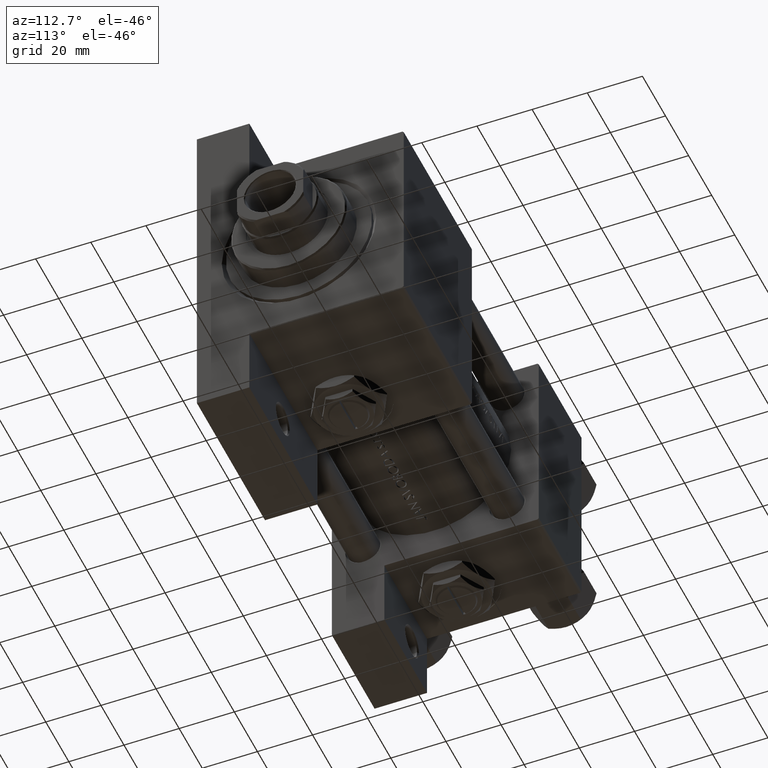
[diagram: clean part render]
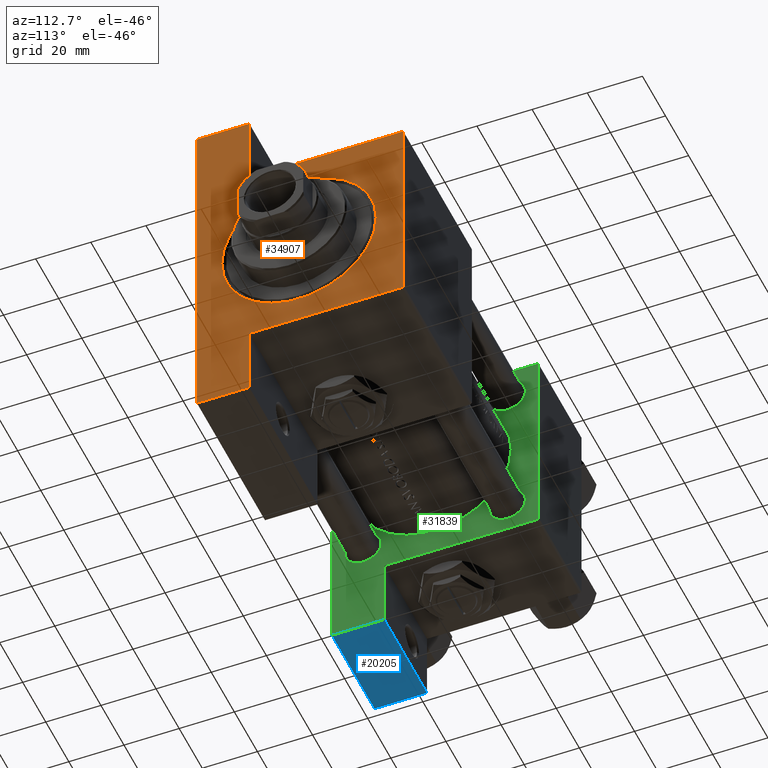
[diagram: same view with three faces highlighted in distinct colors, each labeled with its STEP entity id]
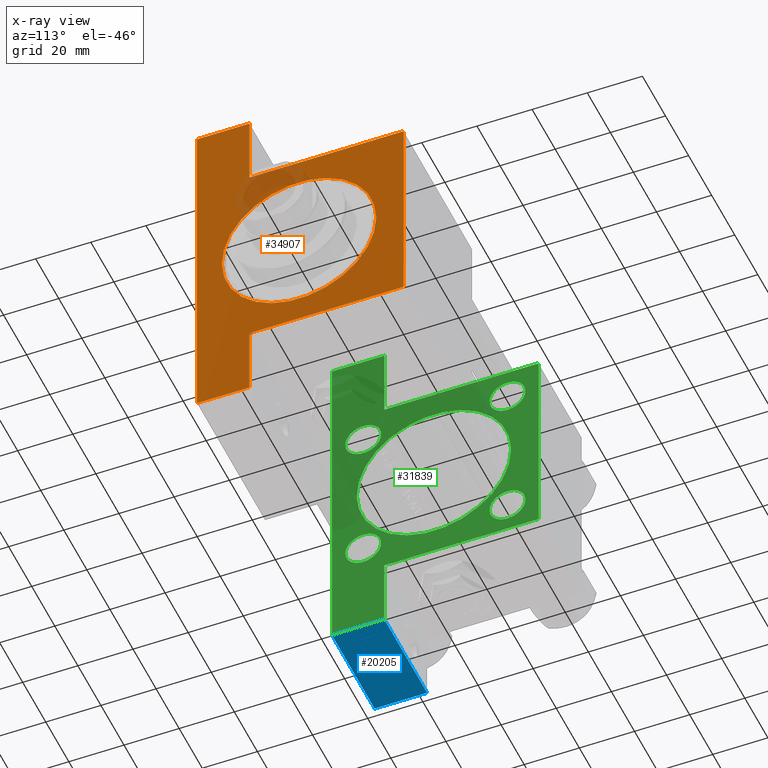
[diagram: x-ray of the same camera — body ghosted, the three highlighted faces saturated]
A machine part, auxiliary view with three faces highlighted in distinct colors.
The next image is the same camera in x-ray (body ghosted, the three faces saturated) — at least one of them is partly hidden behind the body in this view.
Their STEP definitions:

[orange] entity #34907 — the highlighted planar face has unit normal (-1, 0, 0).
#230 = ORIENTED_EDGE ( 'NONE', *, *, #29464, .F. ) ;
#1184 = DIRECTION ( 'NONE',  ( -1.067522139062650671E-15, -1.000000000000000000, 0.000000000000000000 ) ) ;
#1255 = EDGE_LOOP ( 'NONE', ( #44757, #30126 ) ) ;
#1565 = CARTESIAN_POINT ( 'NONE',  ( 154.0000000000000000, -37.50000000000000711, -18.50000000000000355 ) ) ;
#2677 = LINE ( 'NONE', #6186, #32424 ) ;
#3826 = DIRECTION ( 'NONE',  ( 0.000000000000000000, -9.251858538542972814E-17, -1.000000000000000000 ) ) ;
#3835 = DIRECTION ( 'NONE',  ( -1.000000000000000000, -0.000000000000000000, 0.000000000000000000 ) ) ;
#4231 = ORIENTED_EDGE ( 'NONE', *, *, #29100, .T. ) ;
#4535 = VERTEX_POINT ( 'NONE', #1565 ) ;
#5499 = VERTEX_POINT ( 'NONE', #19713 ) ;
#6186 = CARTESIAN_POINT ( 'NONE',  ( 154.0000000000000000, 37.50000000000000000, 37.49999999999999289 ) ) ;
#8521 = CARTESIAN_POINT ( 'NONE',  ( 154.0000000000000000, 37.50000000000000000, 36.99999999999999289 ) ) ;
#9108 = CARTESIAN_POINT ( 'NONE',  ( 154.0000000000000000, 0.000000000000000000, -0.5000000000000004441 ) ) ;
#9416 = VECTOR ( 'NONE', #23317, 1000.000000000000000 ) ;
#9875 = ORIENTED_EDGE ( 'NONE', *, *, #41698, .F. ) ;
#9942 = VERTEX_POINT ( 'NONE', #8521 ) ;
#10072 = LINE ( 'NONE', #10314, #27412 ) ;
#10314 = CARTESIAN_POINT ( 'NONE',  ( 154.0000000000000000, 37.00000000000000000, 37.49999999999999289 ) ) ;
#10377 = CARTESIAN_POINT ( 'NONE',  ( 154.0000000000000000, 37.50000000000000000, 37.49999999999999289 ) ) ;
#11161 = FACE_BOUND ( 'NONE', #1255, .T. ) ;
#11900 = EDGE_CURVE ( 'NONE', #32151, #43029, #2677, .T. ) ;
#12760 = LINE ( 'NONE', #39095, #37432 ) ;
#13724 = VERTEX_POINT ( 'NONE', #32346 ) ;
#14503 = VECTOR ( 'NONE', #3826, 1000.000000000000000 ) ;
#15000 = CARTESIAN_POINT ( 'NONE',  ( 153.9999999999999716, -63.50000000000002842, -18.50000000000000000 ) ) ;
#15961 = CARTESIAN_POINT ( 'NONE',  ( 153.9999999999999716, -63.50000000000002842, -18.50000000000000000 ) ) ;
#16238 = CARTESIAN_POINT ( 'NONE',  ( 154.0000000000000000, 0.000000000000000000, -28.49999999999999645 ) ) ;
#16407 = CARTESIAN_POINT ( 'NONE',  ( 154.0000000000000000, 63.50000000000000000, -18.50000000000000000 ) ) ;
#17108 = EDGE_CURVE ( 'NONE', #43029, #46724, #27147, .T. ) ;
#17344 = VERTEX_POINT ( 'NONE', #16238 ) ;
#18148 = LINE ( 'NONE', #10377, #27048 ) ;
#18216 = ORIENTED_EDGE ( 'NONE', *, *, #40200, .T. ) ;
#18672 = CARTESIAN_POINT ( 'NONE',  ( 154.0000000000000000, 0.000000000000000000, 0.000000000000000000 ) ) ;
#19362 = DIRECTION ( 'NONE',  ( 0.000000000000000000, 0.000000000000000000, 1.000000000000000000 ) ) ;
#19561 = CARTESIAN_POINT ( 'NONE',  ( 154.0000000000000000, 37.50000000000000000, -37.50000000000000000 ) ) ;
#19713 = CARTESIAN_POINT ( 'NONE',  ( 153.9999999999999716, 37.50000000000000711, -18.50000000000000000 ) ) ;
#19759 = CARTESIAN_POINT ( 'NONE',  ( 154.0000000000000000, 37.00000000000000000, 37.49999999999999289 ) ) ;
#19848 = CARTESIAN_POINT ( 'NONE',  ( 154.0000000000000000, -37.50000000000000000, 37.49999999999997868 ) ) ;
#20467 = LINE ( 'NONE', #35767, #27589 ) ;
#20575 = EDGE_CURVE ( 'NONE', #9942, #32151, #10072, .T. ) ;
#21064 = CARTESIAN_POINT ( 'NONE',  ( 154.0000000000000000, 3.429011037612588881E-15, 27.49999999999999645 ) ) ;
#21934 = DIRECTION ( 'NONE',  ( 0.000000000000000000, 0.000000000000000000, 1.000000000000000000 ) ) ;
#22203 = AXIS2_PLACEMENT_3D ( 'NONE', #38187, #3835, #19362 ) ;
#23317 = DIRECTION ( 'NONE',  ( 0.000000000000000000, -1.000000000000000000, 0.000000000000000000 ) ) ;
#23387 = EDGE_LOOP ( 'NONE', ( #38027, #33652, #27954, #37224, #45549, #18216, #41671, #9875, #230, #4231 ) ) ;
#25986 = DIRECTION ( 'NONE',  ( 0.000000000000000000, -1.000000000000000000, -1.850371707708594316E-16 ) ) ;
#26696 = PLANE ( 'NONE',  #35744 ) ;
#27048 = VECTOR ( 'NONE', #44489, 1000.000000000000000 ) ;
#27147 = LINE ( 'NONE', #39418, #48086 ) ;
#27412 = VECTOR ( 'NONE', #36891, 1000.000000000000114 ) ;
#27589 = VECTOR ( 'NONE', #1184, 1000.000000000000000 ) ;
#27954 = ORIENTED_EDGE ( 'NONE', *, *, #11900, .T. ) ;
#29100 = EDGE_CURVE ( 'NONE', #38762, #5499, #20467, .T. ) ;
#29464 = EDGE_CURVE ( 'NONE', #38762, #33446, #42754, .T. ) ;
#30126 = ORIENTED_EDGE ( 'NONE', *, *, #43898, .T. ) ;
#30288 = DIRECTION ( 'NONE',  ( -0.000000000000000000, -1.000000000000000000, -0.000000000000000000 ) ) ;
#30360 = LINE ( 'NONE', #19561, #9416 ) ;
#31211 = DIRECTION ( 'NONE',  ( 0.000000000000000000, 0.000000000000000000, -1.000000000000000000 ) ) ;
#31435 = DIRECTION ( 'NONE',  ( 0.000000000000000000, 0.000000000000000000, 1.000000000000000000 ) ) ;
#31689 = DIRECTION ( 'NONE',  ( -1.000000000000000000, -0.000000000000000000, 0.000000000000000000 ) ) ;
#31743 = CARTESIAN_POINT ( 'NONE',  ( 154.0000000000000000, 63.50000000000000000, -37.50000000000000000 ) ) ;
#32151 = VERTEX_POINT ( 'NONE', #19759 ) ;
#32346 = CARTESIAN_POINT ( 'NONE',  ( 153.9999999999999716, -63.50000000000002842, -37.50000000000000000 ) ) ;
#32424 = VECTOR ( 'NONE', #25986, 1000.000000000000000 ) ;
#32780 = CIRCLE ( 'NONE', #37592, 27.99999999999999645 ) ;
#33166 = VECTOR ( 'NONE', #31211, 1000.000000000000000 ) ;
#33298 = LINE ( 'NONE', #15000, #47013 ) ;
#33425 = CARTESIAN_POINT ( 'NONE',  ( 154.0000000000000000, -37.50000000000000000, 36.99999999999997868 ) ) ;
#33446 = VERTEX_POINT ( 'NONE', #31743 ) ;
#33478 = FACE_OUTER_BOUND ( 'NONE', #23387, .T. ) ;
#33652 = ORIENTED_EDGE ( 'NONE', *, *, #20575, .T. ) ;
#34907 = ADVANCED_FACE ( 'NONE', ( #11161, #33478 ), #26696, .F. ) ;
#34948 = CARTESIAN_POINT ( 'NONE',  ( 154.0000000000000000, -36.99999999999997158, 37.49999999999997868 ) ) ;
#35744 = AXIS2_PLACEMENT_3D ( 'NONE', #18672, #45020, #21934 ) ;
#35767 = CARTESIAN_POINT ( 'NONE',  ( 154.0000000000000000, 63.50000000000000000, -18.50000000000000000 ) ) ;
#36891 = DIRECTION ( 'NONE',  ( 0.000000000000000000, -0.7071067811865474617, 0.7071067811865474617 ) ) ;
#37224 = ORIENTED_EDGE ( 'NONE', *, *, #17108, .T. ) ;
#37432 = VECTOR ( 'NONE', #38853, 1000.000000000000000 ) ;
#37592 = AXIS2_PLACEMENT_3D ( 'NONE', #9108, #31689, #31435 ) ;
#38027 = ORIENTED_EDGE ( 'NONE', *, *, #42057, .F. ) ;
#38051 = EDGE_CURVE ( 'NONE', #45313, #13724, #12760, .T. ) ;
#38187 = CARTESIAN_POINT ( 'NONE',  ( 154.0000000000000000, 0.000000000000000000, -0.5000000000000004441 ) ) ;
#38663 = LINE ( 'NONE', #19848, #14503 ) ;
#38762 = VERTEX_POINT ( 'NONE', #16407 ) ;
#38853 = DIRECTION ( 'NONE',  ( 0.000000000000000000, 0.000000000000000000, -1.000000000000000000 ) ) ;
#39095 = CARTESIAN_POINT ( 'NONE',  ( 153.9999999999999716, -63.50000000000002842, -18.50000000000000000 ) ) ;
#39418 = CARTESIAN_POINT ( 'NONE',  ( 154.0000000000000000, -37.50000000000000000, 36.99999999999997868 ) ) ;
#40200 = EDGE_CURVE ( 'NONE', #4535, #45313, #33298, .T. ) ;
#40797 = EDGE_CURVE ( 'NONE', #17344, #45677, #43816, .T. ) ;
#41671 = ORIENTED_EDGE ( 'NONE', *, *, #38051, .T. ) ;
#41698 = EDGE_CURVE ( 'NONE', #33446, #13724, #30360, .T. ) ;
#42057 = EDGE_CURVE ( 'NONE', #9942, #5499, #18148, .T. ) ;
#42259 = CARTESIAN_POINT ( 'NONE',  ( 154.0000000000000000, 63.50000000000000000, -18.50000000000000000 ) ) ;
#42443 = DIRECTION ( 'NONE',  ( -0.000000000000000000, -0.7071067811865672237, -0.7071067811865279218 ) ) ;
#42754 = LINE ( 'NONE', #42259, #33166 ) ;
#43029 = VERTEX_POINT ( 'NONE', #34948 ) ;
#43816 = CIRCLE ( 'NONE', #22203, 27.99999999999999645 ) ;
#43898 = EDGE_CURVE ( 'NONE', #45677, #17344, #32780, .T. ) ;
#44489 = DIRECTION ( 'NONE',  ( 0.000000000000000000, 0.000000000000000000, -1.000000000000000000 ) ) ;
#44757 = ORIENTED_EDGE ( 'NONE', *, *, #40797, .T. ) ;
#45020 = DIRECTION ( 'NONE',  ( -1.000000000000000000, -0.000000000000000000, 0.000000000000000000 ) ) ;
#45313 = VERTEX_POINT ( 'NONE', #15961 ) ;
#45549 = ORIENTED_EDGE ( 'NONE', *, *, #47915, .T. ) ;
#45677 = VERTEX_POINT ( 'NONE', #21064 ) ;
#46724 = VERTEX_POINT ( 'NONE', #33425 ) ;
#47013 = VECTOR ( 'NONE', #30288, 1000.000000000000000 ) ;
#47915 = EDGE_CURVE ( 'NONE', #46724, #4535, #38663, .T. ) ;
#48086 = VECTOR ( 'NONE', #42443, 1000.000000000000000 ) ;

[blue] entity #20205 — the highlighted planar face has unit normal (0, -0, -1).
#1639 = CARTESIAN_POINT ( 'NONE',  ( 37.00000000000001421, 63.50000000000001421, 26.72167621838005047 ) ) ;
#3900 = LINE ( 'NONE', #15190, #12316 ) ;
#4329 = DIRECTION ( 'NONE',  ( 1.000000000000000000, 0.000000000000000000, 0.000000000000000000 ) ) ;
#4450 = VECTOR ( 'NONE', #4329, 1000.000000000000000 ) ;
#5060 = CARTESIAN_POINT ( 'NONE',  ( 37.00000000000001421, 63.50000000000000000, -37.50000000000002132 ) ) ;
#5134 = DIRECTION ( 'NONE',  ( 0.000000000000000000, 1.734723475976806848E-16, 1.000000000000000000 ) ) ;
#5611 = CARTESIAN_POINT ( 'NONE',  ( 1.595073532467135441E-14, 63.50000000000001421, 26.72167621838005047 ) ) ;
#5991 = ORIENTED_EDGE ( 'NONE', *, *, #27972, .T. ) ;
#6874 = EDGE_CURVE ( 'NONE', #32451, #37217, #22930, .T. ) ;
#7596 = VECTOR ( 'NONE', #42002, 1000.000000000000000 ) ;
#8256 = EDGE_CURVE ( 'NONE', #28697, #28503, #39171, .T. ) ;
#9376 = FACE_OUTER_BOUND ( 'NONE', #21720, .T. ) ;
#12316 = VECTOR ( 'NONE', #38494, 1000.000000000000000 ) ;
#15190 = CARTESIAN_POINT ( 'NONE',  ( 1.595073532467135441E-14, 63.50000000000001421, 26.72167621838005047 ) ) ;
#18930 = CARTESIAN_POINT ( 'NONE',  ( 1.595073532467135441E-14, 63.50000000000000000, -18.50000000000000355 ) ) ;
#20205 = ADVANCED_FACE ( 'NONE', ( #9376 ), #39965, .T. ) ;
#20926 = DIRECTION ( 'NONE',  ( 0.000000000000000000, -1.734723475976806848E-16, -1.000000000000000000 ) ) ;
#21720 = EDGE_LOOP ( 'NONE', ( #34547, #5991, #47632, #26111 ) ) ;
#22930 = LINE ( 'NONE', #18930, #7596 ) ;
#23717 = CARTESIAN_POINT ( 'NONE',  ( 37.00000000000001421, 63.50000000000000000, -18.50000000000000355 ) ) ;
#23857 = EDGE_CURVE ( 'NONE', #37217, #28697, #3900, .T. ) ;
#24173 = DIRECTION ( 'NONE',  ( 0.000000000000000000, 1.000000000000000000, -1.734723475976806848E-16 ) ) ;
#24922 = AXIS2_PLACEMENT_3D ( 'NONE', #5611, #24173, #5134 ) ;
#26111 = ORIENTED_EDGE ( 'NONE', *, *, #23857, .F. ) ;
#27972 = EDGE_CURVE ( 'NONE', #32451, #28503, #35991, .T. ) ;
#28503 = VERTEX_POINT ( 'NONE', #5060 ) ;
#28697 = VERTEX_POINT ( 'NONE', #29851 ) ;
#29851 = CARTESIAN_POINT ( 'NONE',  ( 1.595073532467135441E-14, 63.50000000000000000, -37.50000000000002132 ) ) ;
#32451 = VERTEX_POINT ( 'NONE', #23717 ) ;
#34547 = ORIENTED_EDGE ( 'NONE', *, *, #6874, .F. ) ;
#35991 = LINE ( 'NONE', #1639, #46710 ) ;
#36554 = CARTESIAN_POINT ( 'NONE',  ( 1.595073532467135441E-14, 63.50000000000000000, -18.50000000000000355 ) ) ;
#37217 = VERTEX_POINT ( 'NONE', #36554 ) ;
#38494 = DIRECTION ( 'NONE',  ( 0.000000000000000000, -1.734723475976806848E-16, -1.000000000000000000 ) ) ;
#39171 = LINE ( 'NONE', #46703, #4450 ) ;
#39965 = PLANE ( 'NONE',  #24922 ) ;
#42002 = DIRECTION ( 'NONE',  ( -1.000000000000000000, 0.000000000000000000, 0.000000000000000000 ) ) ;
#46703 = CARTESIAN_POINT ( 'NONE',  ( 1.595073532467135441E-14, 63.50000000000000000, -37.50000000000002132 ) ) ;
#46710 = VECTOR ( 'NONE', #20926, 1000.000000000000000 ) ;
#47632 = ORIENTED_EDGE ( 'NONE', *, *, #8256, .F. ) ;

[green] entity #31839 — the highlighted planar face has unit normal (-1, 0, -0).
#129 = CARTESIAN_POINT ( 'NONE',  ( 37.00000000000000000, 37.49999999999999289, 37.50000000000000000 ) ) ;
#434 = AXIS2_PLACEMENT_3D ( 'NONE', #45989, #45497, #37963 ) ;
#1639 = CARTESIAN_POINT ( 'NONE',  ( 37.00000000000001421, 63.50000000000001421, 26.72167621838005047 ) ) ;
#1802 = CARTESIAN_POINT ( 'NONE',  ( 37.00000000000000000, 37.49999999999999289, -37.50000000000000000 ) ) ;
#1814 = EDGE_LOOP ( 'NONE', ( #22465, #27091 ) ) ;
#1859 = VERTEX_POINT ( 'NONE', #17118 ) ;
#2390 = CARTESIAN_POINT ( 'NONE',  ( 37.00000000000000000, -37.50000000000000711, 36.99999999999999289 ) ) ;
#2508 = EDGE_CURVE ( 'NONE', #5198, #47378, #26682, .T. ) ;
#2672 = AXIS2_PLACEMENT_3D ( 'NONE', #12502, #28025, #42349 ) ;
#2939 = CARTESIAN_POINT ( 'NONE',  ( 37.00000000000000000, 26.14999999999999858, -26.15000000000000213 ) ) ;
#2954 = EDGE_CURVE ( 'NONE', #4019, #44997, #45279, .T. ) ;
#2993 = VECTOR ( 'NONE', #4068, 1000.000000000000000 ) ;
#3465 = CIRCLE ( 'NONE', #2672, 6.500000000000030198 ) ;
#4019 = VERTEX_POINT ( 'NONE', #40602 ) ;
#4068 = DIRECTION ( 'NONE',  ( 0.000000000000000000, 0.000000000000000000, -1.000000000000000000 ) ) ;
#4223 = VECTOR ( 'NONE', #5331, 1000.000000000000000 ) ;
#4807 = CARTESIAN_POINT ( 'NONE',  ( 37.00000000000000000, 37.49999999999999289, 37.00000000000000000 ) ) ;
#4911 = ORIENTED_EDGE ( 'NONE', *, *, #37885, .T. ) ;
#4937 = CIRCLE ( 'NONE', #29772, 28.00000000000000000 ) ;
#5060 = CARTESIAN_POINT ( 'NONE',  ( 37.00000000000001421, 63.50000000000000000, -37.50000000000002132 ) ) ;
#5198 = VERTEX_POINT ( 'NONE', #29517 ) ;
#5218 = CIRCLE ( 'NONE', #49273, 6.500000000000002665 ) ;
#5236 = DIRECTION ( 'NONE',  ( 0.000000000000000000, 0.000000000000000000, 1.000000000000000000 ) ) ;
#5331 = DIRECTION ( 'NONE',  ( 0.000000000000000000, -1.000000000000000000, -9.251858538542972814E-17 ) ) ;
#7301 = CARTESIAN_POINT ( 'NONE',  ( 37.00000000000000000, -63.49999999999998579, 26.72167621838007889 ) ) ;
#7312 = DIRECTION ( 'NONE',  ( 0.000000000000000000, -0.7071067811865474617, 0.7071067811865474617 ) ) ;
#7445 = VECTOR ( 'NONE', #34139, 1000.000000000000000 ) ;
#8325 = DIRECTION ( 'NONE',  ( 0.000000000000000000, 9.251858538542971581E-17, -1.000000000000000000 ) ) ;
#8483 = CARTESIAN_POINT ( 'NONE',  ( 37.00000000000000000, -26.14999999999999147, -26.15000000000000924 ) ) ;
#8754 = CARTESIAN_POINT ( 'NONE',  ( 37.00000000000000000, -63.50000000000000000, -18.50000000000000355 ) ) ;
#8858 = ORIENTED_EDGE ( 'NONE', *, *, #37928, .F. ) ;
#9072 = EDGE_CURVE ( 'NONE', #42166, #32451, #21833, .T. ) ;
#9221 = CIRCLE ( 'NONE', #42060, 6.500000000000008882 ) ;
#9811 = DIRECTION ( 'NONE',  ( 2.668805347656626678E-16, 1.000000000000000000, 0.000000000000000000 ) ) ;
#9954 = ORIENTED_EDGE ( 'NONE', *, *, #31957, .T. ) ;
#10130 = ORIENTED_EDGE ( 'NONE', *, *, #26240, .T. ) ;
#10624 = CARTESIAN_POINT ( 'NONE',  ( 37.00000000000000711, 37.50000000000000711, -18.50000000000000355 ) ) ;
#11172 = LINE ( 'NONE', #129, #43018 ) ;
#11285 = CARTESIAN_POINT ( 'NONE',  ( 37.00000000000000000, -26.14999999999999147, 26.15000000000000924 ) ) ;
#11670 = DIRECTION ( 'NONE',  ( 0.000000000000000000, -1.000000000000000000, -9.251858538542971581E-17 ) ) ;
#12091 = CARTESIAN_POINT ( 'NONE',  ( 37.00000000000000000, -37.50000000000000711, 37.49999999999999289 ) ) ;
#12258 = VECTOR ( 'NONE', #40755, 1000.000000000000114 ) ;
#12352 = CARTESIAN_POINT ( 'NONE',  ( 37.00000000000000000, 36.99999999999999289, 37.50000000000000000 ) ) ;
#12502 = CARTESIAN_POINT ( 'NONE',  ( 37.00000000000000000, 26.14999999999999858, 26.15000000000000213 ) ) ;
#12925 = CARTESIAN_POINT ( 'NONE',  ( 37.00000000000000000, 3.429011037612588487E-15, -28.50000000000000000 ) ) ;
#12981 = VERTEX_POINT ( 'NONE', #12925 ) ;
#13358 = ORIENTED_EDGE ( 'NONE', *, *, #2508, .T. ) ;
#13523 = DIRECTION ( 'NONE',  ( 0.000000000000000000, 0.000000000000000000, 1.000000000000000000 ) ) ;
#13727 = EDGE_LOOP ( 'NONE', ( #38089, #13358 ) ) ;
#14302 = DIRECTION ( 'NONE',  ( 0.000000000000000000, 0.000000000000000000, 1.000000000000000000 ) ) ;
#14476 = ORIENTED_EDGE ( 'NONE', *, *, #16146, .F. ) ;
#14902 = FACE_BOUND ( 'NONE', #13727, .T. ) ;
#15787 = CARTESIAN_POINT ( 'NONE',  ( 37.00000000000000000, -63.49999999999998579, -18.50000000000000355 ) ) ;
#16146 = EDGE_CURVE ( 'NONE', #48307, #12981, #30458, .T. ) ;
#16199 = ORIENTED_EDGE ( 'NONE', *, *, #9072, .F. ) ;
#16630 = CIRCLE ( 'NONE', #39039, 6.500000000000008882 ) ;
#16846 = ORIENTED_EDGE ( 'NONE', *, *, #19768, .T. ) ;
#17118 = CARTESIAN_POINT ( 'NONE',  ( 37.00000000000000000, -26.14999999999999147, -32.65000000000001279 ) ) ;
#17230 = ORIENTED_EDGE ( 'NONE', *, *, #27972, .F. ) ;
#17310 = CARTESIAN_POINT ( 'NONE',  ( 37.00000000000000000, -26.14999999999999147, 19.65000000000000213 ) ) ;
#17498 = EDGE_CURVE ( 'NONE', #47378, #5198, #31279, .T. ) ;
#17723 = EDGE_LOOP ( 'NONE', ( #44180, #46305 ) ) ;
#17814 = DIRECTION ( 'NONE',  ( 0.000000000000000000, 0.000000000000000000, 1.000000000000000000 ) ) ;
#17877 = CIRCLE ( 'NONE', #42699, 6.500000000000030198 ) ;
#18615 = CARTESIAN_POINT ( 'NONE',  ( 37.00000000000000000, 37.49999999999999289, 37.50000000000000000 ) ) ;
#18821 = CIRCLE ( 'NONE', #25213, 6.500000000000002665 ) ;
#19138 = FACE_OUTER_BOUND ( 'NONE', #21244, .T. ) ;
#19355 = VECTOR ( 'NONE', #8325, 1000.000000000000000 ) ;
#19581 = LINE ( 'NONE', #37910, #34898 ) ;
#19742 = VERTEX_POINT ( 'NONE', #4807 ) ;
#19768 = EDGE_CURVE ( 'NONE', #44997, #28626, #42926, .T. ) ;
#19881 = VERTEX_POINT ( 'NONE', #17310 ) ;
#19989 = EDGE_CURVE ( 'NONE', #12981, #48307, #4937, .T. ) ;
#20545 = CARTESIAN_POINT ( 'NONE',  ( 37.00000000000000000, -26.14999999999999147, 26.15000000000000924 ) ) ;
#20778 = VERTEX_POINT ( 'NONE', #31539 ) ;
#20926 = DIRECTION ( 'NONE',  ( 0.000000000000000000, -1.734723475976806848E-16, -1.000000000000000000 ) ) ;
#21244 = EDGE_LOOP ( 'NONE', ( #23157, #35838, #16846, #8858, #10130, #42464, #17230, #16199, #34868, #22889 ) ) ;
#21452 = EDGE_CURVE ( 'NONE', #28503, #47245, #43926, .T. ) ;
#21833 = LINE ( 'NONE', #36888, #37991 ) ;
#22465 = ORIENTED_EDGE ( 'NONE', *, *, #31934, .T. ) ;
#22651 = PLANE ( 'NONE',  #434 ) ;
#22889 = ORIENTED_EDGE ( 'NONE', *, *, #33084, .T. ) ;
#22898 = FACE_BOUND ( 'NONE', #17723, .T. ) ;
#22969 = DIRECTION ( 'NONE',  ( 0.000000000000000000, 0.000000000000000000, 1.000000000000000000 ) ) ;
#23157 = ORIENTED_EDGE ( 'NONE', *, *, #36549, .T. ) ;
#23405 = VERTEX_POINT ( 'NONE', #12352 ) ;
#23717 = CARTESIAN_POINT ( 'NONE',  ( 37.00000000000001421, 63.50000000000000000, -18.50000000000000355 ) ) ;
#25213 = AXIS2_PLACEMENT_3D ( 'NONE', #8483, #49602, #39071 ) ;
#25333 = CARTESIAN_POINT ( 'NONE',  ( 37.00000000000000000, -37.50000000000000000, -18.50000000000000355 ) ) ;
#26240 = EDGE_CURVE ( 'NONE', #28730, #47245, #30871, .T. ) ;
#26682 = CIRCLE ( 'NONE', #45121, 6.500000000000030198 ) ;
#27091 = ORIENTED_EDGE ( 'NONE', *, *, #32209, .T. ) ;
#27563 = EDGE_CURVE ( 'NONE', #38391, #27775, #17877, .T. ) ;
#27644 = EDGE_CURVE ( 'NONE', #27775, #38391, #3465, .T. ) ;
#27775 = VERTEX_POINT ( 'NONE', #37795 ) ;
#27972 = EDGE_CURVE ( 'NONE', #32451, #28503, #35991, .T. ) ;
#28025 = DIRECTION ( 'NONE',  ( -1.000000000000000000, 0.000000000000000000, -0.000000000000000000 ) ) ;
#28282 = DIRECTION ( 'NONE',  ( -1.000000000000000000, 0.000000000000000000, -0.000000000000000000 ) ) ;
#28503 = VERTEX_POINT ( 'NONE', #5060 ) ;
#28626 = VERTEX_POINT ( 'NONE', #25333 ) ;
#28730 = VERTEX_POINT ( 'NONE', #8754 ) ;
#28804 = DIRECTION ( 'NONE',  ( -1.000000000000000000, 0.000000000000000000, -0.000000000000000000 ) ) ;
#29517 = CARTESIAN_POINT ( 'NONE',  ( 37.00000000000000000, 26.14999999999999858, -19.64999999999997371 ) ) ;
#29772 = AXIS2_PLACEMENT_3D ( 'NONE', #49387, #37618, #34108 ) ;
#30157 = LINE ( 'NONE', #18615, #2993 ) ;
#30458 = CIRCLE ( 'NONE', #44047, 28.00000000000000000 ) ;
#30675 = FACE_BOUND ( 'NONE', #44394, .T. ) ;
#30871 = LINE ( 'NONE', #7301, #7445 ) ;
#31279 = CIRCLE ( 'NONE', #33678, 6.500000000000030198 ) ;
#31539 = CARTESIAN_POINT ( 'NONE',  ( 37.00000000000000000, -26.14999999999999147, -19.65000000000000924 ) ) ;
#31839 = ADVANCED_FACE ( 'NONE', ( #45249, #14902, #41968, #22898, #30675, #19138 ), #22651, .F. ) ;
#31934 = EDGE_CURVE ( 'NONE', #1859, #20778, #5218, .T. ) ;
#31957 = EDGE_CURVE ( 'NONE', #19881, #33009, #9221, .T. ) ;
#32074 = CARTESIAN_POINT ( 'NONE',  ( 37.00000000000000000, -26.14999999999999147, -26.15000000000000924 ) ) ;
#32209 = EDGE_CURVE ( 'NONE', #20778, #1859, #18821, .T. ) ;
#32451 = VERTEX_POINT ( 'NONE', #23717 ) ;
#33009 = VERTEX_POINT ( 'NONE', #41425 ) ;
#33084 = EDGE_CURVE ( 'NONE', #19742, #23405, #19581, .T. ) ;
#33678 = AXIS2_PLACEMENT_3D ( 'NONE', #2939, #42045, #22969 ) ;
#33687 = EDGE_LOOP ( 'NONE', ( #9954, #4911 ) ) ;
#34090 = DIRECTION ( 'NONE',  ( 0.000000000000000000, 0.000000000000000000, 1.000000000000000000 ) ) ;
#34108 = DIRECTION ( 'NONE',  ( 0.000000000000000000, 0.000000000000000000, 1.000000000000000000 ) ) ;
#34139 = DIRECTION ( 'NONE',  ( 0.000000000000000000, -1.734723475976806848E-16, -1.000000000000000000 ) ) ;
#34868 = ORIENTED_EDGE ( 'NONE', *, *, #37647, .F. ) ;
#34898 = VECTOR ( 'NONE', #7312, 1000.000000000000114 ) ;
#35816 = CARTESIAN_POINT ( 'NONE',  ( 37.00000000000000000, 26.14999999999999858, -26.15000000000000213 ) ) ;
#35838 = ORIENTED_EDGE ( 'NONE', *, *, #2954, .T. ) ;
#35991 = LINE ( 'NONE', #1639, #46710 ) ;
#36089 = DIRECTION ( 'NONE',  ( 0.000000000000000000, 0.000000000000000000, 1.000000000000000000 ) ) ;
#36549 = EDGE_CURVE ( 'NONE', #23405, #4019, #11172, .T. ) ;
#36876 = DIRECTION ( 'NONE',  ( 1.000000000000000000, -0.000000000000000000, 0.000000000000000000 ) ) ;
#36888 = CARTESIAN_POINT ( 'NONE',  ( 37.00000000000001421, 63.50000000000001421, -18.50000000000000355 ) ) ;
#37618 = DIRECTION ( 'NONE',  ( 1.000000000000000000, -0.000000000000000000, 0.000000000000000000 ) ) ;
#37647 = EDGE_CURVE ( 'NONE', #19742, #42166, #30157, .T. ) ;
#37795 = CARTESIAN_POINT ( 'NONE',  ( 37.00000000000000000, 26.14999999999999858, 19.64999999999997016 ) ) ;
#37885 = EDGE_CURVE ( 'NONE', #33009, #19881, #16630, .T. ) ;
#37910 = CARTESIAN_POINT ( 'NONE',  ( 37.00000000000000000, 36.99999999999999289, 37.50000000000000000 ) ) ;
#37928 = EDGE_CURVE ( 'NONE', #28730, #28626, #38596, .T. ) ;
#37963 = DIRECTION ( 'NONE',  ( -0.000000000000000000, 0.000000000000000000, 1.000000000000000000 ) ) ;
#37991 = VECTOR ( 'NONE', #9811, 1000.000000000000000 ) ;
#38089 = ORIENTED_EDGE ( 'NONE', *, *, #17498, .T. ) ;
#38391 = VERTEX_POINT ( 'NONE', #47288 ) ;
#38596 = LINE ( 'NONE', #15787, #44661 ) ;
#38742 = CARTESIAN_POINT ( 'NONE',  ( 37.00000000000000000, 26.14999999999999858, -32.65000000000003411 ) ) ;
#39039 = AXIS2_PLACEMENT_3D ( 'NONE', #11285, #48641, #14302 ) ;
#39071 = DIRECTION ( 'NONE',  ( 0.000000000000000000, 0.000000000000000000, 1.000000000000000000 ) ) ;
#40602 = CARTESIAN_POINT ( 'NONE',  ( 37.00000000000000000, -37.00000000000000711, 37.49999999999999289 ) ) ;
#40755 = DIRECTION ( 'NONE',  ( -0.000000000000000000, -0.7071067811865474617, -0.7071067811865474617 ) ) ;
#41425 = CARTESIAN_POINT ( 'NONE',  ( 37.00000000000000000, -26.14999999999999147, 32.65000000000001990 ) ) ;
#41968 = FACE_BOUND ( 'NONE', #33687, .T. ) ;
#42045 = DIRECTION ( 'NONE',  ( -1.000000000000000000, 0.000000000000000000, -0.000000000000000000 ) ) ;
#42060 = AXIS2_PLACEMENT_3D ( 'NONE', #20545, #48112, #13523 ) ;
#42166 = VERTEX_POINT ( 'NONE', #10624 ) ;
#42349 = DIRECTION ( 'NONE',  ( 0.000000000000000000, 0.000000000000000000, 1.000000000000000000 ) ) ;
#42464 = ORIENTED_EDGE ( 'NONE', *, *, #21452, .F. ) ;
#42606 = CARTESIAN_POINT ( 'NONE',  ( 37.00000000000000000, -37.50000000000000711, 36.99999999999999289 ) ) ;
#42699 = AXIS2_PLACEMENT_3D ( 'NONE', #49122, #45623, #34090 ) ;
#42926 = LINE ( 'NONE', #12091, #19355 ) ;
#43018 = VECTOR ( 'NONE', #11670, 1000.000000000000000 ) ;
#43926 = LINE ( 'NONE', #1802, #4223 ) ;
#44047 = AXIS2_PLACEMENT_3D ( 'NONE', #44410, #36876, #17814 ) ;
#44180 = ORIENTED_EDGE ( 'NONE', *, *, #27644, .T. ) ;
#44394 = EDGE_LOOP ( 'NONE', ( #14476, #46232 ) ) ;
#44410 = CARTESIAN_POINT ( 'NONE',  ( 37.00000000000000000, 0.000000000000000000, -0.5000000000000004441 ) ) ;
#44661 = VECTOR ( 'NONE', #46622, 1000.000000000000000 ) ;
#44790 = CARTESIAN_POINT ( 'NONE',  ( 37.00000000000000000, -63.50000000000000000, -37.49999999999999289 ) ) ;
#44997 = VERTEX_POINT ( 'NONE', #42606 ) ;
#45121 = AXIS2_PLACEMENT_3D ( 'NONE', #35816, #28282, #5236 ) ;
#45249 = FACE_BOUND ( 'NONE', #1814, .T. ) ;
#45279 = LINE ( 'NONE', #2390, #12258 ) ;
#45497 = DIRECTION ( 'NONE',  ( -1.000000000000000000, 0.000000000000000000, -0.000000000000000000 ) ) ;
#45623 = DIRECTION ( 'NONE',  ( -1.000000000000000000, 0.000000000000000000, -0.000000000000000000 ) ) ;
#45989 = CARTESIAN_POINT ( 'NONE',  ( 37.00000000000000000, 0.000000000000000000, 0.000000000000000000 ) ) ;
#46232 = ORIENTED_EDGE ( 'NONE', *, *, #19989, .F. ) ;
#46305 = ORIENTED_EDGE ( 'NONE', *, *, #27563, .T. ) ;
#46622 = DIRECTION ( 'NONE',  ( -0.000000000000000000, 1.000000000000000000, 0.000000000000000000 ) ) ;
#46710 = VECTOR ( 'NONE', #20926, 1000.000000000000000 ) ;
#47245 = VERTEX_POINT ( 'NONE', #44790 ) ;
#47288 = CARTESIAN_POINT ( 'NONE',  ( 37.00000000000000000, 26.14999999999999858, 32.65000000000004121 ) ) ;
#47378 = VERTEX_POINT ( 'NONE', #38742 ) ;
#48020 = CARTESIAN_POINT ( 'NONE',  ( 37.00000000000000000, 0.000000000000000000, 27.50000000000000000 ) ) ;
#48112 = DIRECTION ( 'NONE',  ( -1.000000000000000000, 0.000000000000000000, -0.000000000000000000 ) ) ;
#48307 = VERTEX_POINT ( 'NONE', #48020 ) ;
#48641 = DIRECTION ( 'NONE',  ( -1.000000000000000000, 0.000000000000000000, -0.000000000000000000 ) ) ;
#49122 = CARTESIAN_POINT ( 'NONE',  ( 37.00000000000000000, 26.14999999999999858, 26.15000000000000213 ) ) ;
#49273 = AXIS2_PLACEMENT_3D ( 'NONE', #32074, #28804, #36089 ) ;
#49387 = CARTESIAN_POINT ( 'NONE',  ( 37.00000000000000000, 0.000000000000000000, -0.5000000000000004441 ) ) ;
#49602 = DIRECTION ( 'NONE',  ( -1.000000000000000000, 0.000000000000000000, -0.000000000000000000 ) ) ;